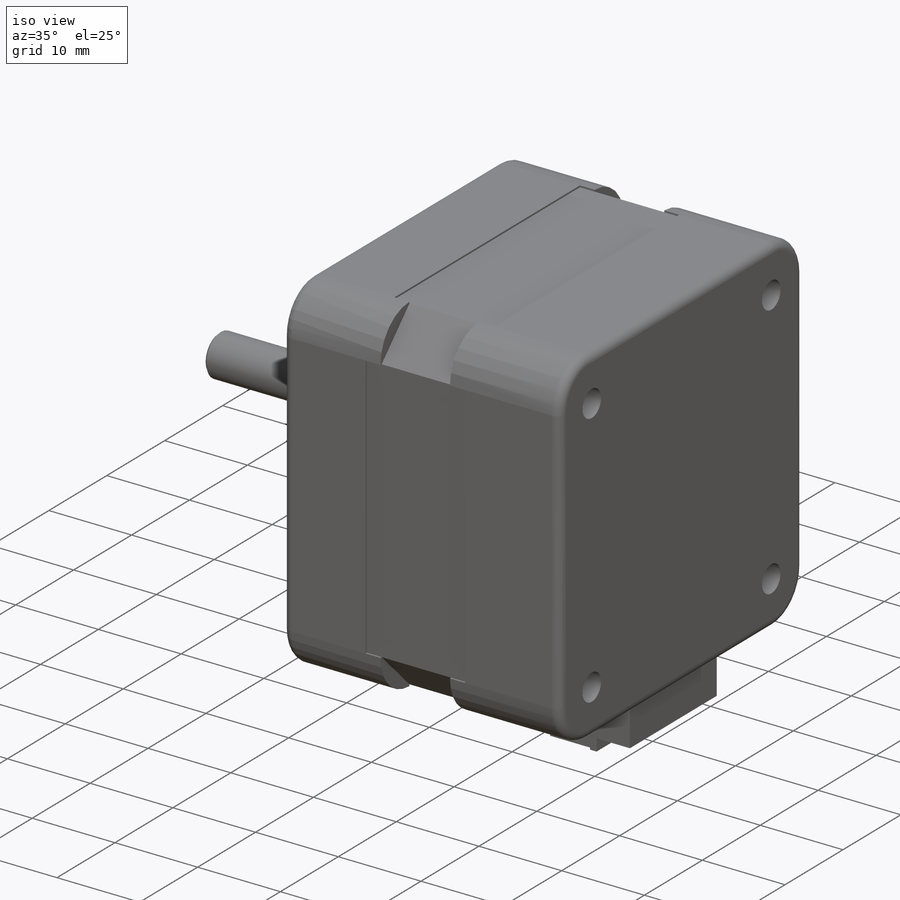
[diagram: iso view]
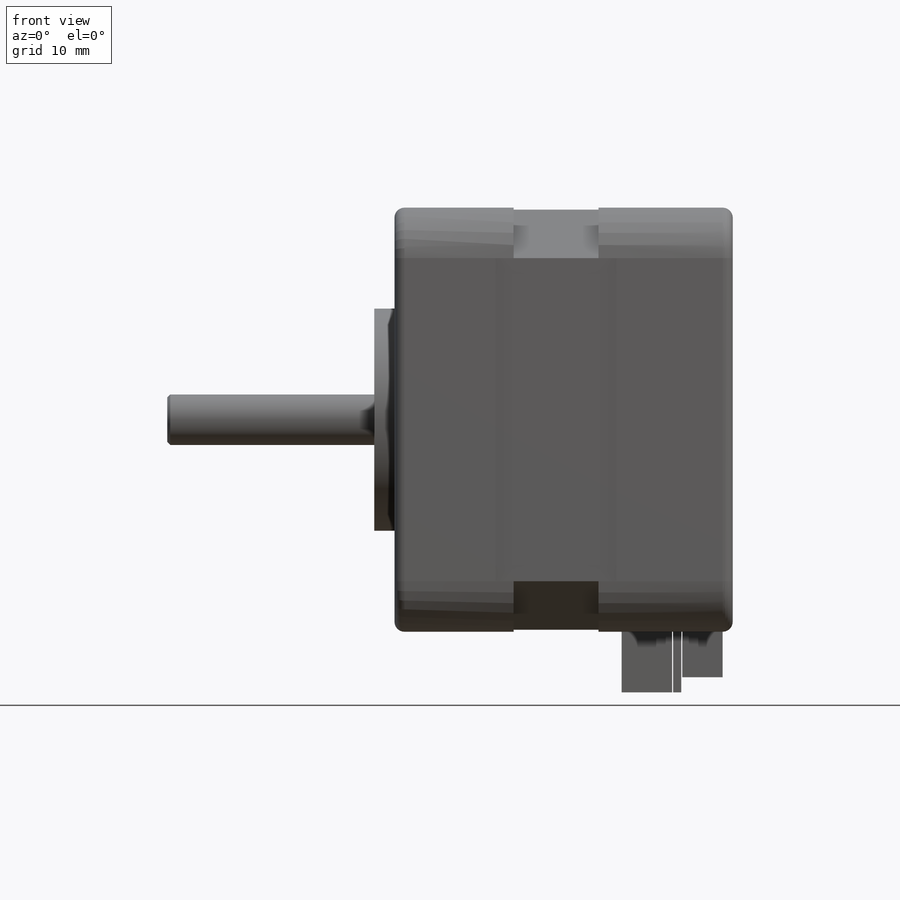
[diagram: front view]
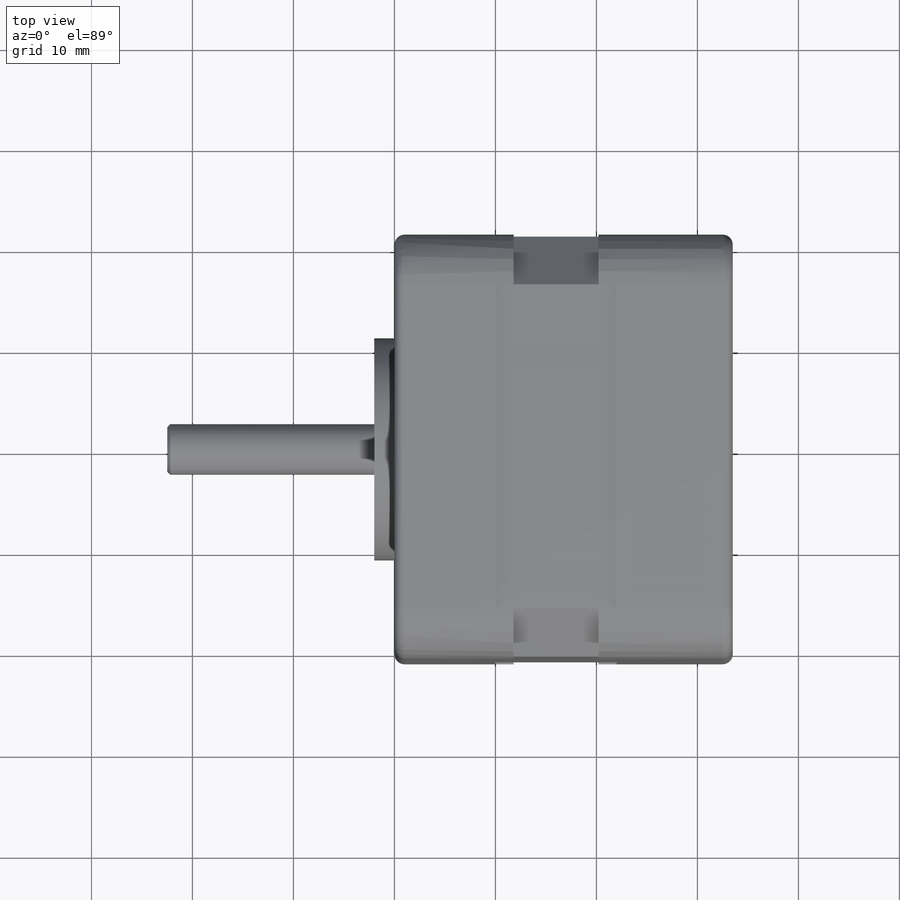
[diagram: top view]
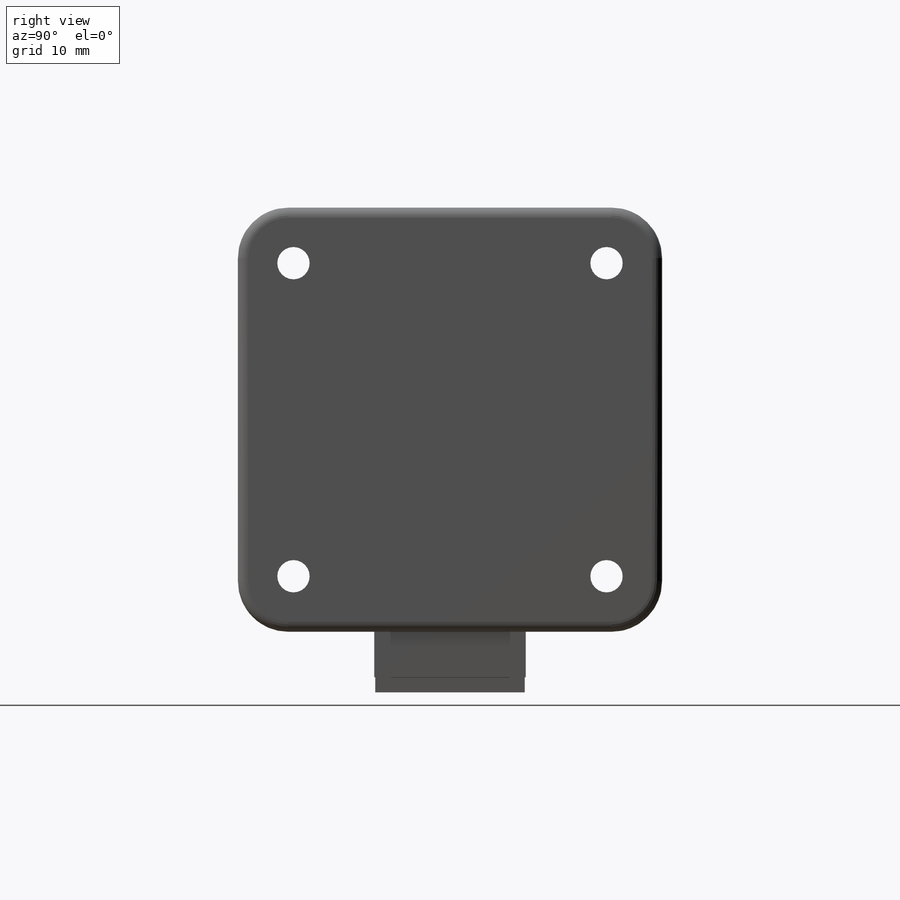
[diagram: right view]
SOLIDWORKS PART (.sldprt)
format: sldprt  version: not decoded by parser v0  size: 449,024 bytes
history: native  units: mm
features: sketch x16, plane x9, extrude x9, cut_extrude x7, fillet x2, material x1, pattern_circular x1, pattern_linear x1, chamfer x1 (+8 scaffold rows collapsed)
feature tree (55):
  scaffold x8  (default folders/planes/origin — collapsed)
  material  "Material <not specified>"
  plane  "Plane1"
  plane  "Plane2"
  plane  "Plane3"
  plane  "Plane4"
  sketch  "Sketch1"  dims[D1=42.0mm D2=42.0mm]
  extrude  "Base-Extrude"  Depth=33.5mm
  fillet  "Fillet1"  Radius=5mm
  plane  "Plane5"
  sketch  "Sketch2"  dims[D1=16.0mm D2=22.0mm]
  extrude  "Boss-Extrude1"  Depth=2mm
  plane  "Plane6"
  sketch  "Sketch3"  dims[D1=5.0mm]
  extrude  "Boss-Extrude2"  Depth=22.5mm
  fillet  "Fillet2"  Radius=1mm
  sketch  "Sketch4"
  cut_extrude  "Cut-Extrude1"  Depth=0mm
  sketch  "Sketch5"
  cut_extrude  "Cut-Extrude2"  Depth=0mm
  plane  "Plane7"
  sketch  "Sketch6"
  cut_extrude  "Cut-Extrude3"  Depth=0mm
  plane  "Plane8"
  sketch  "Sketch7"
  cut_extrude  "Cut-Extrude4"  Depth=0mm
  plane  "Plane10"  Offset=10mm
  sketch  "Sketch9"  dims[D1=0.2mm D2=0.2mm D3=0.2mm D4=0.2mm D5=0.2mm D6=0.2mm D7=0.2mm D8=0.2mm]
  cut_extrude  "Cut-Extrude8"  Depth=12mm
  sketch  "Sketch10"
  extrude  "Boss-Extrude3"  Depth=1.8mm
  sketch  "Sketch11"
  extrude  "Boss-Extrude4"  Depth=1.8mm
  pattern_circular  "CirPattern1"  Count=4 Angle=90deg
  sketch  "Sketch13"  dims[D1=15.0mm D2=13.5mm D3=4.0mm]
  extrude  "Boss-Extrude6"  Depth=4.5mm
  sketch  "Sketch14"  dims[c1.D1=5.0mm c1.D2=24.0mm c1.D3=1.5mm c1.D4=7.5mm c1.D5=14.0mm c1.D6=2.5mm c1.D7=22.5mm c1.D8=10.0mm c1.D9=1.5mm c1.D10=1.5mm c1.D11=8.0mm c1.D12=2.0mm c2.D2=10.0mm c2.D3=2.0mm c3.D2=1.0mm c3.D3=0.5mm]
  extrude  "Boss-Extrude7"  Depth=6mm
  sketch  "Sketch15"  dims[c1.D1=0.5mm c1.D2=0.5mm c1.D3=0.5mm c1.D4=0.5mm c2.D1=0.5mm c2.D2=0.5mm c2.D3=0.5mm c2.D4=0.5mm c3.D1=0.0mm c3.D2=0.5mm]
  cut_extrude  "Cut-Extrude9"  Depth=5.7mm
  sketch  "Sketch16"  dims[c1.D1=4.0mm c1.D2=3.0mm c1.D3=6.0mm c2.D3=3.0deg c3.D3=4.0mm c4.D3=~0.203054deg c4.D1=4.0mm c4.D2=3.0mm c5.D3=3.0mm]
  cut_extrude  "Cut-Extrude10"  Depth=1mm
  sketch  "Sketch17"  dims[c1.D1=0.5mm c1.D2=0.5mm c1.D3=2.2mm c1.D4=1.7mm c2.D3=1.25mm c2.D4=1.5mm c2.D5=0.5mm c2.D6=0.5mm c2.D7=1.25mm c2.D8=0.5mm c2.D9=0.5mm c2.D10=1.5mm c3.D3=2.0mm c3.D4=1.5mm c4.D3=1.25mm]
  extrude  "Boss-Extrude8"  Depth=3.5mm
  pattern_linear  "LPattern1"  Count1=6 Count2=1 Spacing1=2mm Spacing2=50mm
  sketch  "Sketch18"  dims[D1=0.1mm D2=0.1mm D3=0.1mm D4=0.1mm]
  extrude  "Boss-Extrude9"  Depth=6mm
  chamfer  "Chamfer1"  Distance=0.3mm Angle=45deg
decode coverage: 31 of 37 modeling features carry decoded parameters
note: ~ marks probable driven/reference dimensions
note: suppression state not decoded; provenance and decode notes live in map.json
